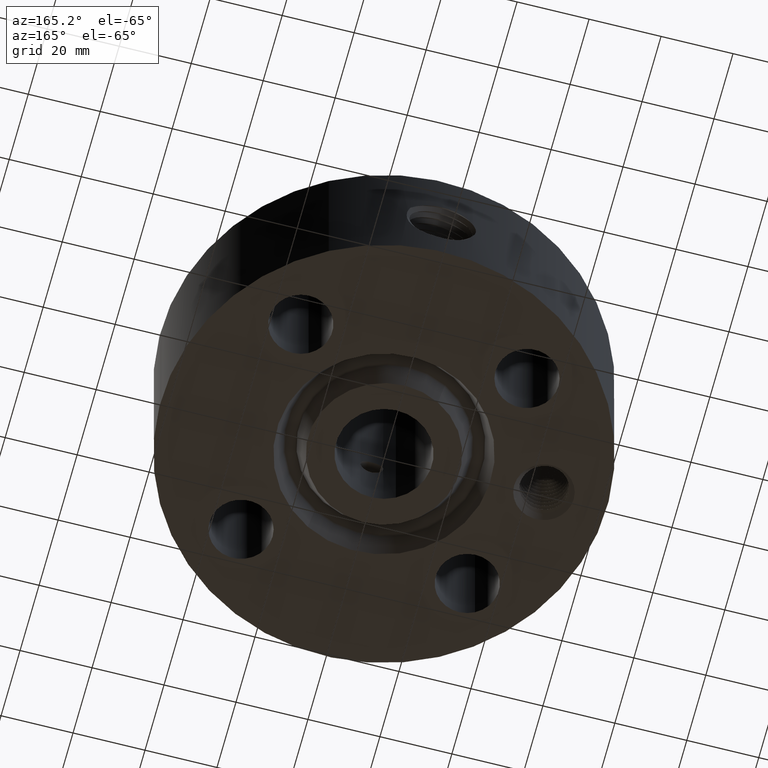
[diagram: clean part render]
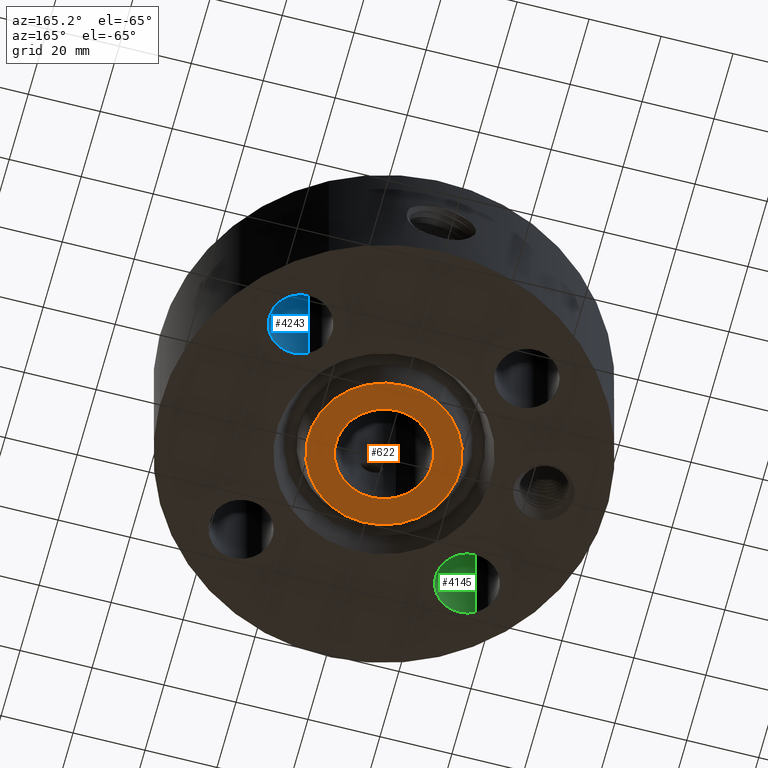
[diagram: same view with three faces highlighted in distinct colors, each labeled with its STEP entity id]
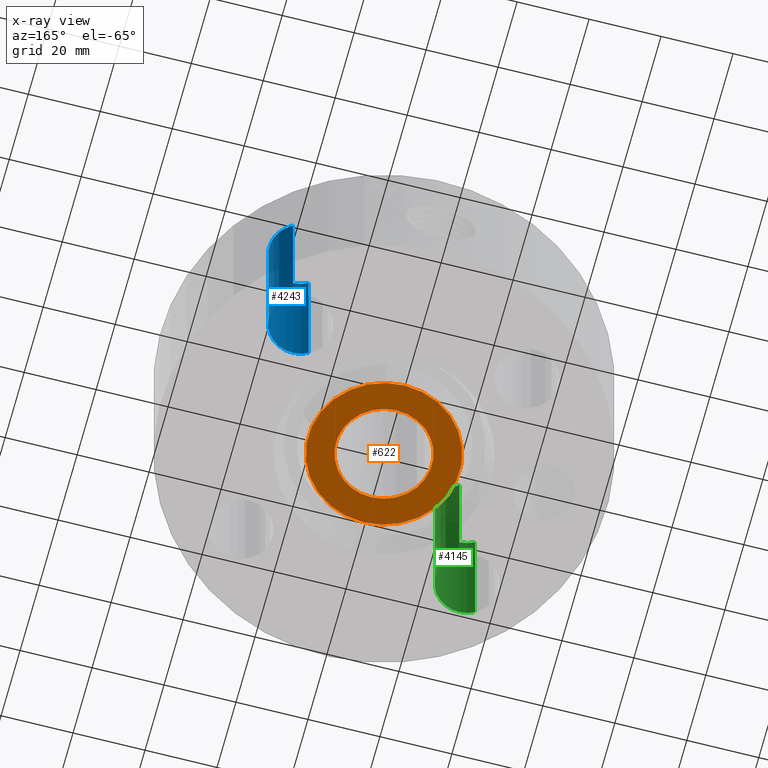
[diagram: x-ray of the same camera — body ghosted, the three highlighted faces saturated]
A machine part, auxiliary view with three faces highlighted in distinct colors.
The next image is the same camera in x-ray (body ghosted, the three faces saturated) — at least one of them is partly hidden behind the body in this view.
Their STEP definitions:

[orange] entity #622 — the highlighted planar face has unit normal (0, 0, -1).
#252=AXIS2_PLACEMENT_3D('Circle Axis2P3D',#250,#251,$) ;
#543=AXIS2_PLACEMENT_3D('Circle Axis2P3D',#541,#542,$) ;
#598=AXIS2_PLACEMENT_3D('Plane Axis2P3D',#595,#596,#597) ;
#602=AXIS2_PLACEMENT_3D('Circle Axis2P3D',#600,#601,$) ;
#611=AXIS2_PLACEMENT_3D('Circle Axis2P3D',#609,#610,$) ;
#247=CARTESIAN_POINT('Vertex',(0.251458694999,0.460292053713,0.)) ;
#250=CARTESIAN_POINT('Axis2P3D Location',(0.,0.,-5.59482469102E-016)) ;
#254=CARTESIAN_POINT('Vertex',(-0.251458694999,-0.460292053713,0.)) ;
#541=CARTESIAN_POINT('Axis2P3D Location',(0.,0.,-5.59482469102E-016)) ;
#595=CARTESIAN_POINT('Axis2P3D Location',(0.,0.524500000002,0.)) ;
#600=CARTESIAN_POINT('Axis2P3D Location',(0.,0.,0.)) ;
#604=CARTESIAN_POINT('Vertex',(-0.396964345966,0.726638361248,0.)) ;
#606=CARTESIAN_POINT('Vertex',(0.396964345966,-0.726638361248,0.)) ;
#609=CARTESIAN_POINT('Axis2P3D Location',(1.39870617276E-016,0.,0.)) ;
#251=DIRECTION('Axis2P3D Direction',(0.,0.,-0.0393700787402)) ;
#542=DIRECTION('Axis2P3D Direction',(0.,0.,-0.0393700787402)) ;
#596=DIRECTION('Axis2P3D Direction',(0.,0.,-0.0393700787402)) ;
#597=DIRECTION('Axis2P3D XDirection',(0.0393700787402,0.,0.)) ;
#601=DIRECTION('Axis2P3D Direction',(0.,0.,-0.0393700787402)) ;
#610=DIRECTION('Axis2P3D Direction',(0.,0.,-0.0393700787402)) ;
#615=ORIENTED_EDGE('',*,*,#608,.T.) ;
#616=ORIENTED_EDGE('',*,*,#613,.T.) ;
#619=ORIENTED_EDGE('',*,*,#256,.F.) ;
#620=ORIENTED_EDGE('',*,*,#545,.F.) ;
#621=FACE_BOUND('',#618,.T.) ;
#622=ADVANCED_FACE('PartBody',(#617,#621),#599,.T.) ;
#253=CIRCLE('generated circle',#252,0.524500000002) ;
#544=CIRCLE('generated circle',#543,0.524500000002) ;
#603=CIRCLE('generated circle',#602,0.828000000003) ;
#612=CIRCLE('generated circle',#611,0.828000000003) ;
#256=EDGE_CURVE('',#248,#255,#253,.T.) ;
#545=EDGE_CURVE('',#255,#248,#544,.T.) ;
#608=EDGE_CURVE('',#605,#607,#603,.T.) ;
#613=EDGE_CURVE('',#607,#605,#612,.T.) ;
#614=EDGE_LOOP('',(#615,#616)) ;
#618=EDGE_LOOP('',(#619,#620)) ;
#617=FACE_OUTER_BOUND('',#614,.T.) ;
#599=PLANE('',#598) ;
#248=VERTEX_POINT('',#247) ;
#255=VERTEX_POINT('',#254) ;
#605=VERTEX_POINT('',#604) ;
#607=VERTEX_POINT('',#606) ;

[blue] entity #4243 — the highlighted cylindrical surface (edge-blend (fillet) strip) has radius 8.763 mm, axis along (0, 0, -1).
#3012=AXIS2_PLACEMENT_3D('Circle Axis2P3D',#3010,#3011,$) ;
#4204=AXIS2_PLACEMENT_3D('Cylinder Axis2P3D',#4201,#4202,#4203) ;
#4234=AXIS2_PLACEMENT_3D('Circle Axis2P3D',#4232,#4233,$) ;
#3010=CARTESIAN_POINT('Axis2P3D Location',(1.23743686708,1.23743686708,1.75000000001)) ;
#3014=CARTESIAN_POINT('Vertex',(1.4028386779,1.54020285093,1.75000000001)) ;
#3016=CARTESIAN_POINT('Vertex',(1.07203505626,0.934670883228,1.75000000001)) ;
#4201=CARTESIAN_POINT('Axis2P3D Location',(1.23743686708,1.23743686708,1.74606299213)) ;
#4206=CARTESIAN_POINT('Line Origine',(1.07203505626,0.934670883228,0.875000000003)) ;
#4210=CARTESIAN_POINT('Vertex',(1.07203505626,0.934670883228,0.)) ;
#4217=CARTESIAN_POINT('Vertex',(1.4028386779,1.54020285093,0.)) ;
#4220=CARTESIAN_POINT('Line Origine',(1.4028386779,1.54020285093,0.875000000003)) ;
#4232=CARTESIAN_POINT('Axis2P3D Location',(1.23743686708,1.23743686708,0.)) ;
#3011=DIRECTION('Axis2P3D Direction',(0.,0.,-0.0393700787402)) ;
#4202=DIRECTION('Axis2P3D Direction',(0.,0.,-0.0393700787402)) ;
#4203=DIRECTION('Axis2P3D XDirection',(0.0188750212049,0.0345504945626,0.)) ;
#4207=DIRECTION('Vector Direction',(0.,0.,-0.0393700787402)) ;
#4221=DIRECTION('Vector Direction',(0.,0.,-0.0393700787402)) ;
#4233=DIRECTION('Axis2P3D Direction',(0.,0.,-0.0393700787402)) ;
#4208=VECTOR('Line Direction',#4207,0.0393700787402) ;
#4222=VECTOR('Line Direction',#4221,0.0393700787402) ;
#4238=ORIENTED_EDGE('',*,*,#4224,.F.) ;
#4239=ORIENTED_EDGE('',*,*,#4236,.T.) ;
#4240=ORIENTED_EDGE('',*,*,#4212,.T.) ;
#4241=ORIENTED_EDGE('',*,*,#3018,.F.) ;
#4243=ADVANCED_FACE('PartBody',(#4242),#4205,.F.) ;
#3013=CIRCLE('generated circle',#3012,0.345000000001) ;
#4235=CIRCLE('generated circle',#4234,0.345000000001) ;
#4205=CYLINDRICAL_SURFACE('generated cylinder',#4204,0.345000000001) ;
#3018=EDGE_CURVE('',#3015,#3017,#3013,.T.) ;
#4212=EDGE_CURVE('',#4211,#3017,#4209,.F.) ;
#4224=EDGE_CURVE('',#4218,#3015,#4223,.F.) ;
#4236=EDGE_CURVE('',#4218,#4211,#4235,.T.) ;
#4237=EDGE_LOOP('',(#4238,#4239,#4240,#4241)) ;
#4242=FACE_OUTER_BOUND('',#4237,.T.) ;
#4209=LINE('Line',#4206,#4208) ;
#4223=LINE('Line',#4220,#4222) ;
#3015=VERTEX_POINT('',#3014) ;
#3017=VERTEX_POINT('',#3016) ;
#4211=VERTEX_POINT('',#4210) ;
#4218=VERTEX_POINT('',#4217) ;

[green] entity #4145 — the highlighted cylindrical surface (edge-blend (fillet) strip) has radius 8.763 mm, axis along (0, -0, -1).
#2985=AXIS2_PLACEMENT_3D('Circle Axis2P3D',#2983,#2984,$) ;
#4118=AXIS2_PLACEMENT_3D('Cylinder Axis2P3D',#4115,#4116,#4117) ;
#4129=AXIS2_PLACEMENT_3D('Circle Axis2P3D',#4127,#4128,$) ;
#2978=CARTESIAN_POINT('Vertex',(-1.4028386779,-1.54020285093,1.75000000001)) ;
#2980=CARTESIAN_POINT('Vertex',(-1.07203505626,-0.934670883228,1.75000000001)) ;
#2983=CARTESIAN_POINT('Axis2P3D Location',(-1.23743686708,-1.23743686708,1.75000000001)) ;
#4115=CARTESIAN_POINT('Axis2P3D Location',(-1.23743686708,-1.23743686708,1.74606299213)) ;
#4120=CARTESIAN_POINT('Line Origine',(-1.07203505626,-0.934670883228,0.875000000003)) ;
#4124=CARTESIAN_POINT('Vertex',(-1.07203505626,-0.934670883228,0.)) ;
#4127=CARTESIAN_POINT('Axis2P3D Location',(-1.23743686708,-1.23743686708,0.)) ;
#4131=CARTESIAN_POINT('Vertex',(-1.4028386779,-1.54020285093,0.)) ;
#4134=CARTESIAN_POINT('Line Origine',(-1.4028386779,-1.54020285093,0.875000000003)) ;
#2984=DIRECTION('Axis2P3D Direction',(0.,0.,-0.0393700787402)) ;
#4116=DIRECTION('Axis2P3D Direction',(0.,-0.,-0.0393700787402)) ;
#4117=DIRECTION('Axis2P3D XDirection',(-0.0188750212049,-0.0345504945626,0.)) ;
#4121=DIRECTION('Vector Direction',(0.,0.,-0.0393700787402)) ;
#4128=DIRECTION('Axis2P3D Direction',(0.,-0.,-0.0393700787402)) ;
#4135=DIRECTION('Vector Direction',(0.,0.,-0.0393700787402)) ;
#4122=VECTOR('Line Direction',#4121,0.0393700787402) ;
#4136=VECTOR('Line Direction',#4135,0.0393700787402) ;
#4140=ORIENTED_EDGE('',*,*,#4126,.F.) ;
#4141=ORIENTED_EDGE('',*,*,#4133,.T.) ;
#4142=ORIENTED_EDGE('',*,*,#4138,.T.) ;
#4143=ORIENTED_EDGE('',*,*,#2987,.F.) ;
#4145=ADVANCED_FACE('PartBody',(#4144),#4119,.F.) ;
#2986=CIRCLE('generated circle',#2985,0.345000000001) ;
#4130=CIRCLE('generated circle',#4129,0.345000000001) ;
#4119=CYLINDRICAL_SURFACE('generated cylinder',#4118,0.345000000001) ;
#2987=EDGE_CURVE('',#2981,#2979,#2986,.T.) ;
#4126=EDGE_CURVE('',#4125,#2981,#4123,.F.) ;
#4133=EDGE_CURVE('',#4125,#4132,#4130,.T.) ;
#4138=EDGE_CURVE('',#4132,#2979,#4137,.F.) ;
#4139=EDGE_LOOP('',(#4140,#4141,#4142,#4143)) ;
#4144=FACE_OUTER_BOUND('',#4139,.T.) ;
#4123=LINE('Line',#4120,#4122) ;
#4137=LINE('Line',#4134,#4136) ;
#2979=VERTEX_POINT('',#2978) ;
#2981=VERTEX_POINT('',#2980) ;
#4125=VERTEX_POINT('',#4124) ;
#4132=VERTEX_POINT('',#4131) ;